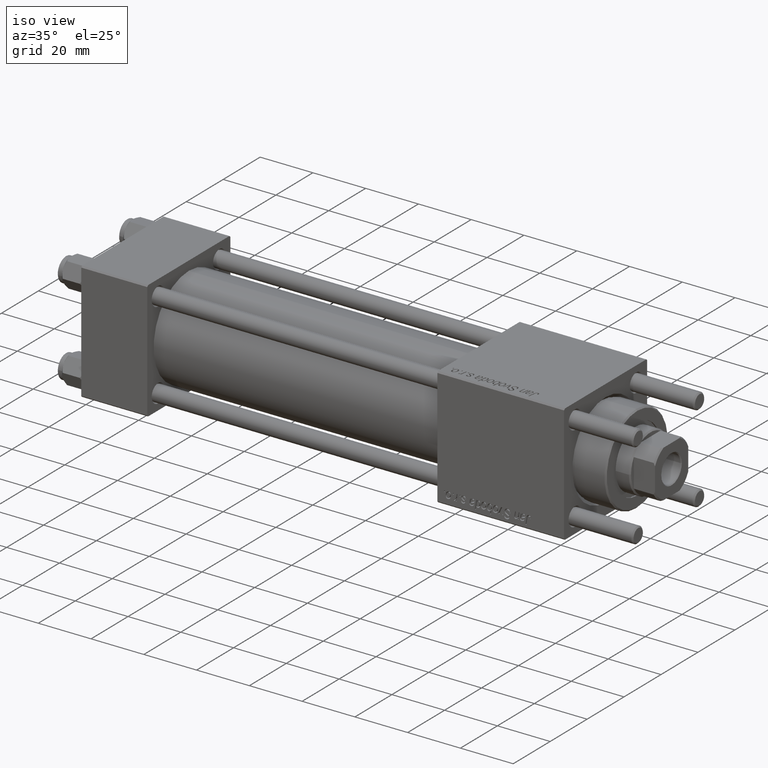
[diagram: clean part render]
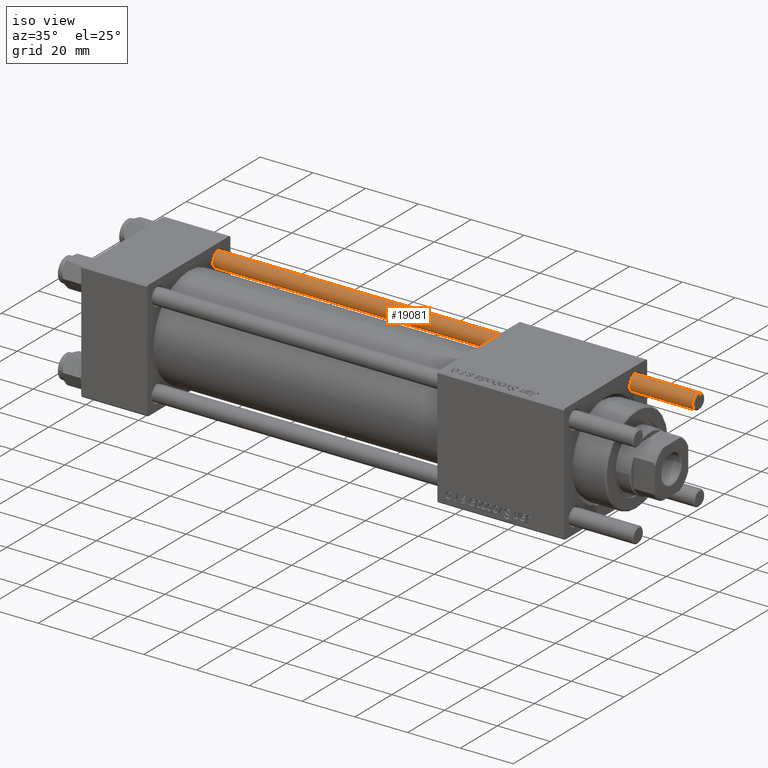
[diagram: same view with one face highlighted and labeled with its STEP entity id]
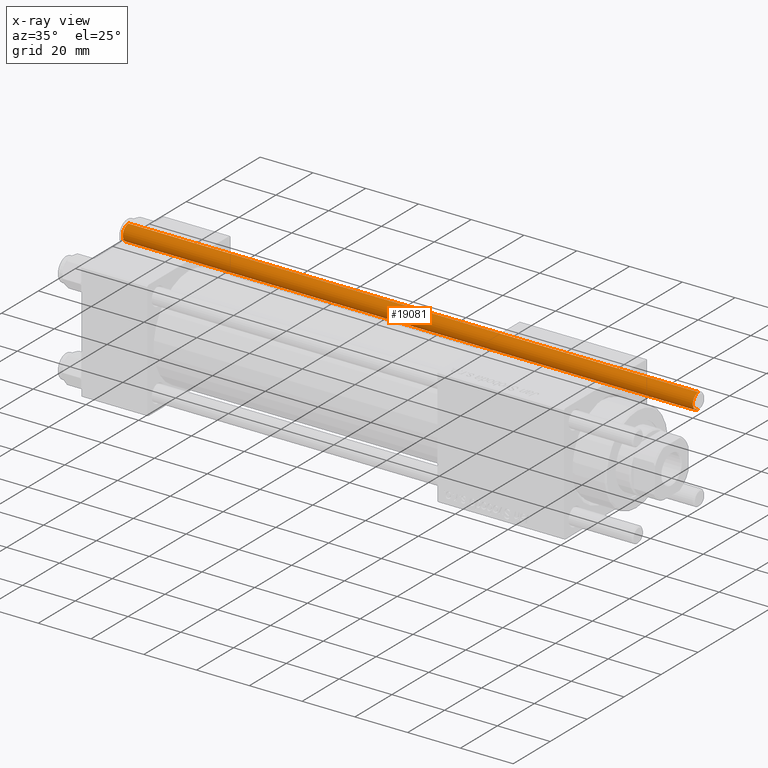
[diagram: x-ray of the same camera — body ghosted, the highlighted face saturated]
A machine part, iso view. The second image highlights one B-rep face of the part: STEP entity #19081.
The next image is the same camera in x-ray: the body ghosted, the highlighted face saturated — about 0% of this face is hidden behind the body in this view.
In plain terms, the highlighted cylindrical surface (edge-blend (fillet) strip) has radius 3 mm, axis along (1, -0, -0).
Its self-contained STEP definition (entity closure, byte-faithful):
#922 = DIRECTION ( 'NONE',  ( -0.000000000000000000, -0.000000000000000000, 1.000000000000000000 ) ) ;
#2678 = VERTEX_POINT ( 'NONE', #38473 ) ;
#2914 = DIRECTION ( 'NONE',  ( -0.000000000000000000, -0.000000000000000000, -1.000000000000000000 ) ) ;
#4311 = AXIS2_PLACEMENT_3D ( 'NONE', #37141, #28244, #10173 ) ;
#5260 = CARTESIAN_POINT ( 'NONE',  ( 0.000000000000000000, 0.000000000000000000, 0.5000000000000559552 ) ) ;
#6081 = AXIS2_PLACEMENT_3D ( 'NONE', #40194, #31590, #13531 ) ;
#6640 = VERTEX_POINT ( 'NONE', #9608 ) ;
#7231 = CARTESIAN_POINT ( 'NONE',  ( -3.000000000000000444, 0.000000000000000000, 217.0000000000000000 ) ) ;
#9608 = CARTESIAN_POINT ( 'NONE',  ( -3.000000000000000444, 0.000000000000000000, 216.5000000000000000 ) ) ;
#9851 = DIRECTION ( 'NONE',  ( 1.000000000000000000, 0.000000000000000000, 0.000000000000000000 ) ) ;
#9885 = ORIENTED_EDGE ( 'NONE', *, *, #50796, .T. ) ;
#10173 = DIRECTION ( 'NONE',  ( -1.000000000000000000, 0.000000000000000000, 0.000000000000000000 ) ) ;
#13531 = DIRECTION ( 'NONE',  ( 1.000000000000000000, 0.000000000000000000, 0.000000000000000000 ) ) ;
#13929 = EDGE_LOOP ( 'NONE', ( #15118, #44578, #38467, #9885 ) ) ;
#15118 = ORIENTED_EDGE ( 'NONE', *, *, #30162, .F. ) ;
#15998 = VERTEX_POINT ( 'NONE', #20107 ) ;
#16668 = CARTESIAN_POINT ( 'NONE',  ( 3.000000000000000444, 3.673940397442060361E-16, 217.0000000000000000 ) ) ;
#19081 = ADVANCED_FACE ( 'NONE', ( #36855 ), #20980, .T. ) ;
#19985 = VERTEX_POINT ( 'NONE', #42180 ) ;
#20107 = CARTESIAN_POINT ( 'NONE',  ( 3.000000000000000444, 3.673940397442060361E-16, 216.5000000000000000 ) ) ;
#20980 = CYLINDRICAL_SURFACE ( 'NONE', #4311, 3.000000000000000444 ) ;
#26938 = EDGE_CURVE ( 'NONE', #6640, #19985, #48254, .T. ) ;
#28244 = DIRECTION ( 'NONE',  ( -0.000000000000000000, -0.000000000000000000, -1.000000000000000000 ) ) ;
#30162 = EDGE_CURVE ( 'NONE', #15998, #2678, #55999, .T. ) ;
#31590 = DIRECTION ( 'NONE',  ( 0.000000000000000000, 0.000000000000000000, -1.000000000000000000 ) ) ;
#31840 = AXIS2_PLACEMENT_3D ( 'NONE', #5260, #922, #9851 ) ;
#32693 = CIRCLE ( 'NONE', #6081, 3.000000000000000444 ) ;
#34584 = CIRCLE ( 'NONE', #31840, 3.000000000000000444 ) ;
#36855 = FACE_OUTER_BOUND ( 'NONE', #13929, .T. ) ;
#37141 = CARTESIAN_POINT ( 'NONE',  ( 0.000000000000000000, 0.000000000000000000, 217.0000000000000000 ) ) ;
#38467 = ORIENTED_EDGE ( 'NONE', *, *, #26938, .T. ) ;
#38473 = CARTESIAN_POINT ( 'NONE',  ( 3.000000000000000444, 3.673940397442060361E-16, 0.5000000000000559552 ) ) ;
#40194 = CARTESIAN_POINT ( 'NONE',  ( 0.000000000000000000, 0.000000000000000000, 216.5000000000000000 ) ) ;
#40514 = VECTOR ( 'NONE', #47692, 1000.000000000000000 ) ;
#42180 = CARTESIAN_POINT ( 'NONE',  ( -3.000000000000000444, 0.000000000000000000, 0.5000000000000559552 ) ) ;
#44578 = ORIENTED_EDGE ( 'NONE', *, *, #44731, .T. ) ;
#44731 = EDGE_CURVE ( 'NONE', #15998, #6640, #32693, .T. ) ;
#47692 = DIRECTION ( 'NONE',  ( -0.000000000000000000, -0.000000000000000000, -1.000000000000000000 ) ) ;
#48254 = LINE ( 'NONE', #7231, #53405 ) ;
#50796 = EDGE_CURVE ( 'NONE', #19985, #2678, #34584, .T. ) ;
#53405 = VECTOR ( 'NONE', #2914, 1000.000000000000000 ) ;
#55999 = LINE ( 'NONE', #16668, #40514 ) ;